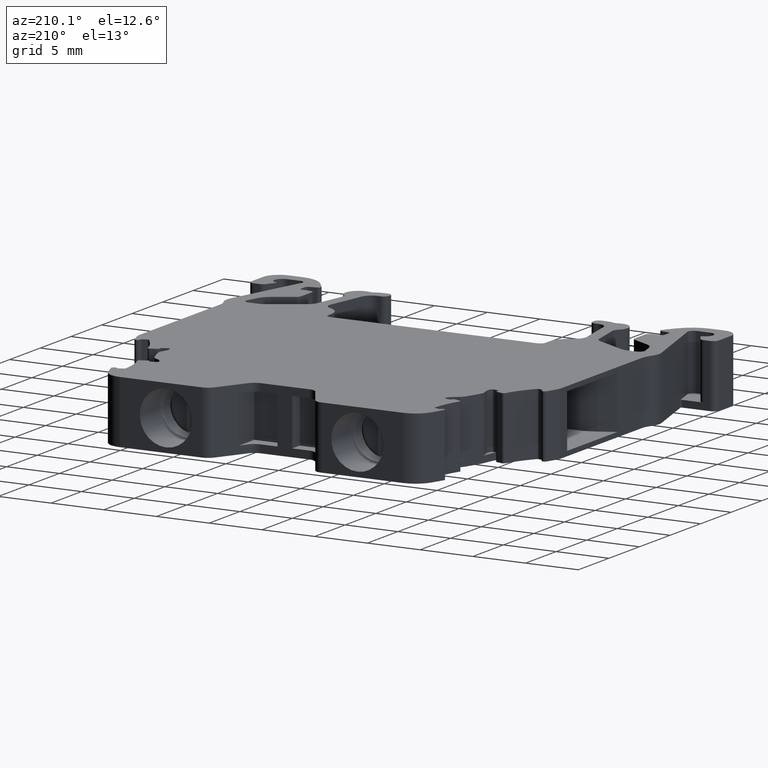
[diagram: clean part render]
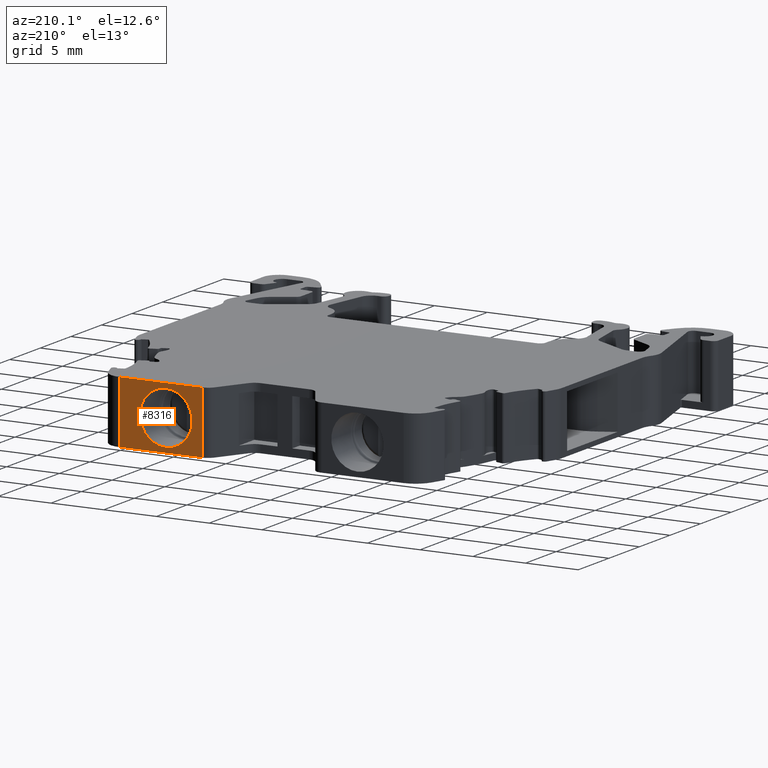
[diagram: same view with one face highlighted and labeled with its STEP entity id]
A machine part, auxiliary view. The second image highlights one B-rep face of the part: STEP entity #8316.
In plain terms, the highlighted planar face has unit normal (0, 1, 0).
Its self-contained STEP definition (entity closure, byte-faithful):
#425 = EDGE_LOOP ( 'NONE', ( #9261, #9251, #9203, #9240 ) ) ;
#452 = EDGE_LOOP ( 'NONE', ( #9196, #9260 ) ) ;
#1372 = CARTESIAN_POINT ( 'NONE',  ( 1469.252770077745900, 957.4726163252451000, 2.482488710350348300 ) ) ;
#1419 = CARTESIAN_POINT ( 'NONE',  ( 1469.252770077745900, 957.4726163252451000, -2.482488710350348300 ) ) ;
#1637 = CARTESIAN_POINT ( 'NONE',  ( 1473.620054528542100, 957.4726163252445300, -2.949999999999999700 ) ) ;
#1644 = CARTESIAN_POINT ( 'NONE',  ( 1473.620054528542100, 957.4726163252445300, 2.949999999999999700 ) ) ;
#1648 = CARTESIAN_POINT ( 'NONE',  ( 1465.826189503149900, 957.4726163252448700, -2.949999999999999700 ) ) ;
#1654 = CARTESIAN_POINT ( 'NONE',  ( 1465.826189503149900, 957.4726163252449900, 2.949999999999999700 ) ) ;
#3483 = EDGE_CURVE ( 'NONE', #10593, #10620, #11760, .T. ) ;
#3739 = DIRECTION ( 'NONE',  ( 0.0000000000000000000, 0.0000000000000000000, -1.000000000000000000 ) ) ;
#3752 = LINE ( 'NONE', #3769, #8591 ) ;
#3769 = CARTESIAN_POINT ( 'NONE',  ( 1473.620054528542100, 957.4726163252451000, 2.899999999999999900 ) ) ;
#3776 = LINE ( 'NONE', #3779, #8583 ) ;
#3779 = CARTESIAN_POINT ( 'NONE',  ( 1465.826189503149900, 957.4726163252448700, -2.949999999999999700 ) ) ;
#3782 = DIRECTION ( 'NONE',  ( 1.000000000000000000, 2.848966516633501100E-014, 0.0000000000000000000 ) ) ;
#3792 = LINE ( 'NONE', #3815, #8621 ) ;
#3806 = DIRECTION ( 'NONE',  ( 0.0000000000000000000, 0.0000000000000000000, -1.000000000000000000 ) ) ;
#3815 = CARTESIAN_POINT ( 'NONE',  ( 1465.826189503149900, 957.4726163252451000, 2.899999999999999900 ) ) ;
#3918 = CARTESIAN_POINT ( 'NONE',  ( 1469.252770077745900, 957.4726163252451000, 0.0000000000000000000 ) ) ;
#3928 = DIRECTION ( 'NONE',  ( 0.0000000000000000000, 1.000000000000000000, 0.0000000000000000000 ) ) ;
#3942 = DIRECTION ( 'NONE',  ( 0.0000000000000000000, 0.0000000000000000000, 1.000000000000000000 ) ) ;
#3961 = LINE ( 'NONE', #3993, #8711 ) ;
#3971 = DIRECTION ( 'NONE',  ( -1.000000000000000000, 7.122416291583752800E-014, 0.0000000000000000000 ) ) ;
#3993 = CARTESIAN_POINT ( 'NONE',  ( 1473.620054528542100, 957.4726163252445300, 2.949999999999999700 ) ) ;
#4945 = EDGE_CURVE ( 'NONE', #11623, #11628, #3752, .T. ) ;
#4964 = EDGE_CURVE ( 'NONE', #11640, #11628, #3776, .T. ) ;
#4990 = EDGE_CURVE ( 'NONE', #11632, #11640, #3792, .T. ) ;
#5067 = EDGE_CURVE ( 'NONE', #10620, #10593, #8659, .T. ) ;
#5109 = EDGE_CURVE ( 'NONE', #11623, #11632, #3961, .T. ) ;
#8316 = ADVANCED_FACE ( 'NONE', ( #12538, #12569 ), #12564, .T. ) ;
#8583 = VECTOR ( 'NONE', #3782, 1000.000000000000000 ) ;
#8591 = VECTOR ( 'NONE', #3739, 1000.000000000000000 ) ;
#8621 = VECTOR ( 'NONE', #3806, 1000.000000000000000 ) ;
#8659 = CIRCLE ( 'NONE', #8664, 2.482488710350348300 ) ;
#8664 = AXIS2_PLACEMENT_3D ( 'NONE', #3918, #3928, #3942 ) ;
#8711 = VECTOR ( 'NONE', #3971, 1000.000000000000000 ) ;
#9196 = ORIENTED_EDGE ( 'NONE', *, *, #5067, .F. ) ;
#9203 = ORIENTED_EDGE ( 'NONE', *, *, #4990, .F. ) ;
#9240 = ORIENTED_EDGE ( 'NONE', *, *, #5109, .F. ) ;
#9251 = ORIENTED_EDGE ( 'NONE', *, *, #4964, .F. ) ;
#9260 = ORIENTED_EDGE ( 'NONE', *, *, #3483, .F. ) ;
#9261 = ORIENTED_EDGE ( 'NONE', *, *, #4945, .T. ) ;
#10186 = AXIS2_PLACEMENT_3D ( 'NONE', #12550, #12617, #12572 ) ;
#10593 = VERTEX_POINT ( 'NONE', #1419 ) ;
#10620 = VERTEX_POINT ( 'NONE', #1372 ) ;
#11623 = VERTEX_POINT ( 'NONE', #1644 ) ;
#11628 = VERTEX_POINT ( 'NONE', #1637 ) ;
#11632 = VERTEX_POINT ( 'NONE', #1654 ) ;
#11640 = VERTEX_POINT ( 'NONE', #1648 ) ;
#11754 = AXIS2_PLACEMENT_3D ( 'NONE', #13819, #13794, #13812 ) ;
#11760 = CIRCLE ( 'NONE', #11754, 2.482488710350348300 ) ;
#12538 = FACE_BOUND ( 'NONE', #452, .T. ) ;
#12550 = CARTESIAN_POINT ( 'NONE',  ( 1471.260352861904300, 957.4726163252451000, 2.899999999999999900 ) ) ;
#12564 = PLANE ( 'NONE',  #10186 ) ;
#12569 = FACE_OUTER_BOUND ( 'NONE', #425, .T. ) ;
#12572 = DIRECTION ( 'NONE',  ( 0.0000000000000000000, 0.0000000000000000000, 1.000000000000000000 ) ) ;
#12617 = DIRECTION ( 'NONE',  ( 0.0000000000000000000, 1.000000000000000000, 0.0000000000000000000 ) ) ;
#13794 = DIRECTION ( 'NONE',  ( 0.0000000000000000000, 1.000000000000000000, 0.0000000000000000000 ) ) ;
#13812 = DIRECTION ( 'NONE',  ( 0.0000000000000000000, 0.0000000000000000000, 1.000000000000000000 ) ) ;
#13819 = CARTESIAN_POINT ( 'NONE',  ( 1469.252770077745900, 957.4726163252451000, 0.0000000000000000000 ) ) ;